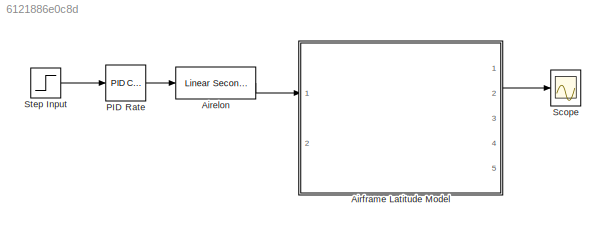
MODEL slx_6121886e0c8d
KIND model
CONFIG AbsTol = auto
CONFIG EnableMultiTasking = off
CONFIG FixedStep = 1e-4
CONFIG MaxStep = auto
CONFIG MinStep = auto
CONFIG RelTol = 1e-5
CONFIG SampleTimeConstraint = Unconstrained
CONFIG Solver = VariableStepAuto
CONFIG SolverName = VariableStepAuto
CONFIG StartTime = 0.0
CONFIG StopTime = 100
BLOCK [Reference] Airelon  REF=aerolibactuator/Linear Second-Order Actuator
  Ports = [1, 1]
  SourceBlock = aerolibactuator/Linear Second-Order Actuator
  SourceProductBaseCode = AE
  SourceProductName = Aerospace Blockset
  SourceType = LinearSecondOrderActuator
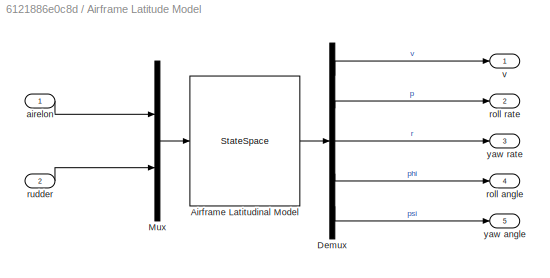
BLOCK [SubSystem] Airframe Latitude Model
  Ports = [2, 5]
  RequestExecContextInheritance = off
BLOCK [StateSpace] Airframe Latitude Model/Airframe Latitudinal Model
  A = sys.lat.A
  B = sys.lat.B
  C = sys.lat.C
  D = sys.lat.D
  InitialCondition = 0
  Ports = [1, 1]
BLOCK [Demux] Airframe Latitude Model/Demux
  DisplayOption = bar
  Outputs = 5
  Ports = [1, 5]
BLOCK [Mux] Airframe Latitude Model/Mux
  DisplayOption = bar
  Inputs = 2
  Ports = [2, 1]
BLOCK [Inport] Airframe Latitude Model/airelon
  IconDisplay = Port number
BLOCK [Outport] Airframe Latitude Model/roll angle
  IconDisplay = Port number
  Port = 4
BLOCK [Outport] Airframe Latitude Model/roll rate
  IconDisplay = Port number
  Port = 2
BLOCK [Inport] Airframe Latitude Model/rudder
  IconDisplay = Port number
  Port = 2
BLOCK [Outport] Airframe Latitude Model/v
  IconDisplay = Port number
BLOCK [Outport] Airframe Latitude Model/yaw angle
  IconDisplay = Port number
  Port = 5
BLOCK [Outport] Airframe Latitude Model/yaw rate
  IconDisplay = Port number
  Port = 3
BLOCK [Reference] PID Rate  REF=simulink/Continuous/PID Controller
  Ports = [1, 1]
  SourceBlock = simulink/Continuous/PID Controller
  SourceProductBaseCode = SL
  SourceProductName = Simulink
  SourceType = PID 1dof
BLOCK [Scope] Scope
  Floating = off
  NumInputPorts = 1
  Ports = [1]
  ScopeSpecificationString = Simulink.scopes.TimeScopeBlockCfg('CurrentConfiguration', extmgr.ConfigurationSet(extmgr.Configuration('Core','General UI',true,'FigureColor',[1 1 1]),extmgr.Configuration('Core','Source UI',true),extmgr.Configuration('Sources','WiredSimulink',true,'DataLoggingVariableName','ScopeData1'),extmgr.Configuration('Visuals','Time Domain',true,'SerializedDisplays',{struct('MinYLimReal','-0.04524','MaxYLi...<+2202ch>
BLOCK [Step] Step Input
LINE Airelon:1 -> Airframe Latitude Model:1
LINE Airframe Latitude Model/Airframe Latitudinal Model:1 -> Airframe Latitude Model/Demux:1
LINE Airframe Latitude Model/Demux:1 -> Airframe Latitude Model/v:1
LINE Airframe Latitude Model/Demux:2 -> Airframe Latitude Model/roll rate:1
LINE Airframe Latitude Model/Demux:3 -> Airframe Latitude Model/yaw rate:1
LINE Airframe Latitude Model/Demux:4 -> Airframe Latitude Model/roll angle:1
LINE Airframe Latitude Model/Demux:5 -> Airframe Latitude Model/yaw angle:1
LINE Airframe Latitude Model/Mux:1 -> Airframe Latitude Model/Airframe Latitudinal Model:1
LINE Airframe Latitude Model/airelon:1 -> Airframe Latitude Model/Mux:1
LINE Airframe Latitude Model/rudder:1 -> Airframe Latitude Model/Mux:2
LINE Airframe Latitude Model:2 -> Scope:1
LINE PID Rate:1 -> Airelon:1
LINE Step Input:1 -> PID Rate:1
